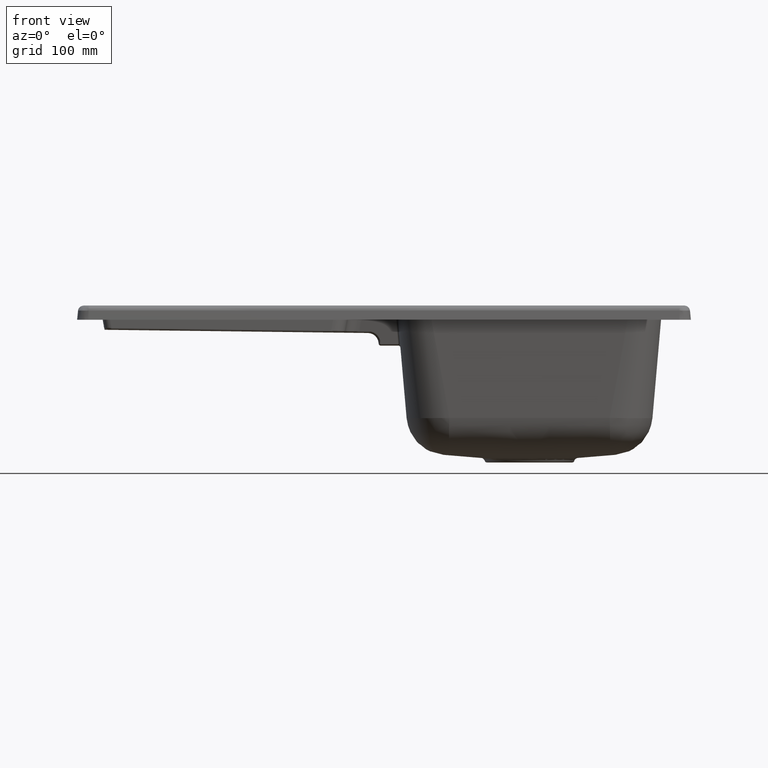
[diagram: clean part render]
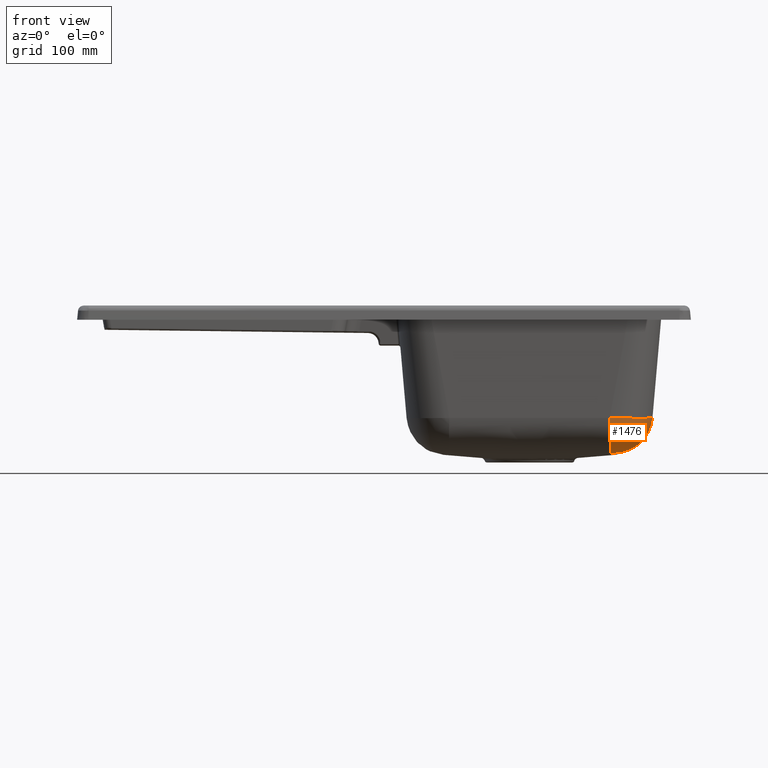
[diagram: same view with one face highlighted and labeled with its STEP entity id]
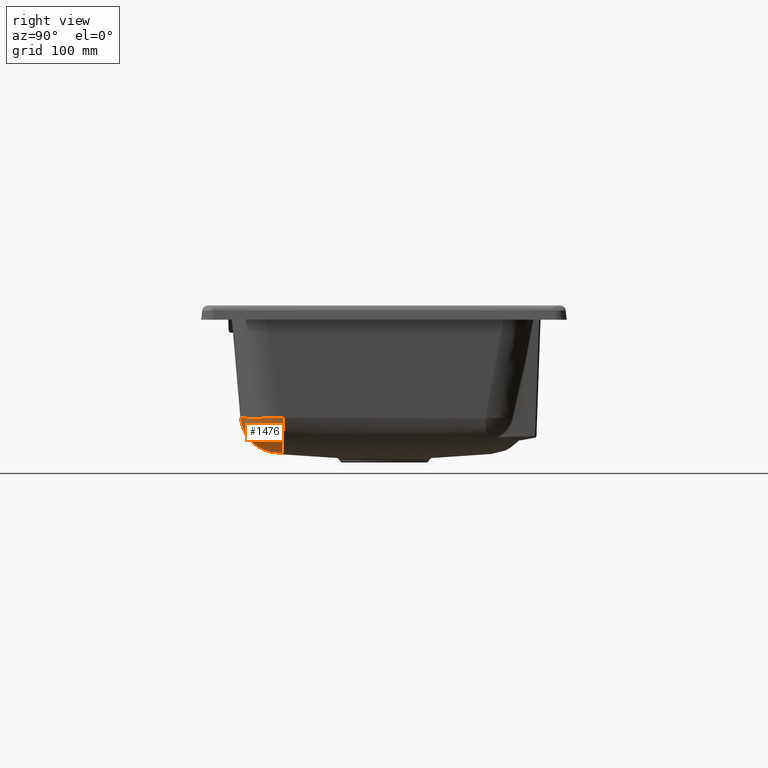
[diagram: same view with one face highlighted and labeled with its STEP entity id]
A machine part, front view. The second image highlights one B-rep face of the part: STEP entity #1476.
A second angle (right view) of the same face is appended — the face is thin or edge-on in the first view.
In plain terms, the highlighted face is a freeform B-spline surface patch.
Its self-contained STEP definition (entity closure, byte-faithful):
#442=B_SPLINE_SURFACE_WITH_KNOTS('',3,5,((#22221,#22222,#22223,#22224,#22225,
#22226,#22227,#22228,#22229,#22230),(#22231,#22232,#22233,#22234,#22235,
#22236,#22237,#22238,#22239,#22240),(#22241,#22242,#22243,#22244,#22245,
#22246,#22247,#22248,#22249,#22250),(#22251,#22252,#22253,#22254,#22255,
#22256,#22257,#22258,#22259,#22260),(#22261,#22262,#22263,#22264,#22265,
#22266,#22267,#22268,#22269,#22270),(#22271,#22272,#22273,#22274,#22275,
#22276,#22277,#22278,#22279,#22280),(#22281,#22282,#22283,#22284,#22285,
#22286,#22287,#22288,#22289,#22290),(#22291,#22292,#22293,#22294,#22295,
#22296,#22297,#22298,#22299,#22300),(#22301,#22302,#22303,#22304,#22305,
#22306,#22307,#22308,#22309,#22310),(#22311,#22312,#22313,#22314,#22315,
#22316,#22317,#22318,#22319,#22320),(#22321,#22322,#22323,#22324,#22325,
#22326,#22327,#22328,#22329,#22330)),.UNSPECIFIED.,.F.,.F.,.F.,(4,1,1,1,
1,1,1,1,4),(6,4,6),(0.,0.125,0.25,0.375,0.5,0.625,0.75,0.875,1.),(0.,0.5,
1.),.UNSPECIFIED.);
#671=FACE_OUTER_BOUND('',#1962,.T.);
#1178=B_SPLINE_CURVE_WITH_KNOTS('',3,(#21959,#21960,#21961,#21962,#21963,
#21964,#21965,#21966,#21967,#21968,#21969),.UNSPECIFIED.,.F.,.F.,(4,1,1,
1,1,1,1,1,4),(0.,0.125,0.25,0.375,0.5,0.625,0.75,0.875,1.),
 .UNSPECIFIED.);
#1180=B_SPLINE_CURVE_WITH_KNOTS('',3,(#22192,#22193,#22194,#22195,#22196,
#22197,#22198,#22199,#22200,#22201),.UNSPECIFIED.,.F.,.F.,(4,2,2,2,4),(0.,
0.25,0.5,0.75,1.),.UNSPECIFIED.);
#1181=B_SPLINE_CURVE_WITH_KNOTS('',3,(#22203,#22204,#22205,#22206,#22207,
#22208,#22209,#22210,#22211,#22212,#22213),.UNSPECIFIED.,.F.,.F.,(4,1,1,
1,1,1,1,1,4),(0.,0.125,0.25,0.375,0.5,0.625,0.75,0.875,1.),
 .UNSPECIFIED.);
#1182=B_SPLINE_CURVE_WITH_KNOTS('',3,(#22215,#22216,#22217,#22218,#22219,
#22220),.UNSPECIFIED.,.F.,.F.,(4,2,4),(0.,0.5,1.),.UNSPECIFIED.);
#1476=ADVANCED_FACE('',(#671),#442,.T.);
#1962=EDGE_LOOP('',(#3114,#3115,#3116,#3117));
#3114=ORIENTED_EDGE('',*,*,#4453,.T.);
#3115=ORIENTED_EDGE('',*,*,#4455,.F.);
#3116=ORIENTED_EDGE('',*,*,#4456,.F.);
#3117=ORIENTED_EDGE('',*,*,#4457,.F.);
#3772=VERTEX_POINT('',#21154);
#3809=VERTEX_POINT('',#21970);
#3810=VERTEX_POINT('',#22202);
#3811=VERTEX_POINT('',#22214);
#4453=EDGE_CURVE('',#3809,#3772,#1178,.T.);
#4455=EDGE_CURVE('',#3810,#3772,#1180,.T.);
#4456=EDGE_CURVE('',#3811,#3810,#1181,.T.);
#4457=EDGE_CURVE('',#3809,#3811,#1182,.T.);
#21154=CARTESIAN_POINT('',(172.630142513004,-141.963709462282,53.3849828229063));
#21959=CARTESIAN_POINT('',(120.326248077913,-143.33888136601,4.17218870263831));
#21960=CARTESIAN_POINT('',(123.599980791565,-143.329325562745,4.25954210211326));
#21961=CARTESIAN_POINT('',(130.131394748293,-143.294971237181,5.03186046092512));
#21962=CARTESIAN_POINT('',(139.556588665748,-143.199415633354,7.94484683321991));
#21963=CARTESIAN_POINT('',(148.298131615595,-143.062995482592,12.516030256442));
#21964=CARTESIAN_POINT('',(156.066954122837,-142.890222603578,18.5942247129857));
#21965=CARTESIAN_POINT('',(162.606131265503,-142.686810127202,25.9784434977313));
#21966=CARTESIAN_POINT('',(167.699431018375,-142.459485146248,34.4244793983414));
#21967=CARTESIAN_POINT('',(171.178401806658,-142.215764966775,43.6530363699214));
#21968=CARTESIAN_POINT('',(172.344809085029,-142.047728483881,50.1236068174302));
#21969=CARTESIAN_POINT('',(172.630142513004,-141.963709462282,53.3849828229062));
#21970=CARTESIAN_POINT('',(120.326248077913,-143.33888136601,4.17218870263831));
#22192=CARTESIAN_POINT('',(112.493387922807,-202.105440782155,53.4034111436312));
#22193=CARTESIAN_POINT('',(119.23352652952,-202.105492361053,53.4040006931319));
#22194=CARTESIAN_POINT('',(126.648188836215,-200.9698868612,53.2966964661192));
#22195=CARTESIAN_POINT('',(141.477726339814,-195.305010598866,53.0825011858364));
#22196=CARTESIAN_POINT('',(148.875465482663,-190.711232587553,52.9827455766643));
#22197=CARTESIAN_POINT('',(161.238152461842,-178.34693582354,52.9775590585692));
#22198=CARTESIAN_POINT('',(165.813955284222,-170.980396419305,53.0719108851719));
#22199=CARTESIAN_POINT('',(171.486986791304,-156.151660133644,53.27903466712));
#22200=CARTESIAN_POINT('',(172.630120433681,-148.724439257771,53.3847304550878));
#22201=CARTESIAN_POINT('',(172.630142513004,-141.963709462282,53.3849828229063));
#22202=CARTESIAN_POINT('',(112.493387922807,-202.105440782155,53.4034111436312));
#22203=CARTESIAN_POINT('',(113.699689998693,-149.933340030027,4.19026180571872));
#22204=CARTESIAN_POINT('',(113.691140220304,-153.201344900022,4.28550229765437));
#22205=CARTESIAN_POINT('',(113.66071480429,-159.719901645647,5.07158442867687));
#22206=CARTESIAN_POINT('',(113.576603192258,-169.123325059333,7.99863387435791));
#22207=CARTESIAN_POINT('',(113.456789946429,-177.842375309044,12.5771568822894));
#22208=CARTESIAN_POINT('',(113.305224360437,-185.589693151743,18.6562324243395));
#22209=CARTESIAN_POINT('',(113.126901500898,-192.109923678824,26.0355183154723));
#22210=CARTESIAN_POINT('',(112.927698948246,-197.188183997126,34.4717885717));
#22211=CARTESIAN_POINT('',(112.714181962272,-200.657082960898,43.6870050919014));
#22212=CARTESIAN_POINT('',(112.566986388522,-201.820565694764,50.1472739949941));
#22213=CARTESIAN_POINT('',(112.493387922807,-202.105440782155,53.4034111436312));
#22214=CARTESIAN_POINT('',(113.699687988177,-149.934108420737,4.19028421015552));
#22215=CARTESIAN_POINT('',(120.326248077913,-143.33888136601,4.17218870263831));
#22216=CARTESIAN_POINT('',(120.276117879567,-145.021048293914,4.21375318165577));
#22217=CARTESIAN_POINT('',(119.509938280687,-146.697769583802,4.23675045300476));
#22218=CARTESIAN_POINT('',(117.059489047882,-149.132828038044,4.24311996093288));
#22219=CARTESIAN_POINT('',(115.385807367809,-149.886342538994,4.22661457526766));
#22220=CARTESIAN_POINT('',(113.699689998693,-149.933340030027,4.19026180571868));
#22221=CARTESIAN_POINT('',(120.326248077913,-143.33888136601,4.17218870263831));
#22222=CARTESIAN_POINT('',(120.295422134733,-144.373275480746,4.19774743391792));
#22223=CARTESIAN_POINT('',(120.045593262535,-145.385875262571,4.2171295461165));
#22224=CARTESIAN_POINT('',(119.607023920565,-146.338919731519,4.23050694310833));
#22225=CARTESIAN_POINT('',(119.009976568067,-147.194647907625,4.23805152876769));
#22226=CARTESIAN_POINT('',(117.559450760502,-148.635949714221,4.24181888516998));
#22227=CARTESIAN_POINT('',(116.701320388401,-149.226941133605,4.23807153130397));
#22228=CARTESIAN_POINT('',(115.747319101631,-149.65941122325,4.22841499821239));
#22229=CARTESIAN_POINT('',(114.734443453845,-149.904498137332,4.21257113873678));
#22230=CARTESIAN_POINT('',(113.699689998693,-149.933340030027,4.19026180571872));
#22231=CARTESIAN_POINT('',(123.599980791565,-143.329325562745,4.25954210211326));
#22232=CARTESIAN_POINT('',(123.464978988172,-144.81893939517,4.29190514288436));
#22233=CARTESIAN_POINT('',(123.044029418444,-146.287630112094,4.31650628092207));
#22234=CARTESIAN_POINT('',(122.364148149697,-147.679139918147,4.33351638231948));
#22235=CARTESIAN_POINT('',(121.463019024345,-148.937200782226,4.34330897186429));
#22236=CARTESIAN_POINT('',(119.305403749245,-151.084802364834,4.34870549215347));
#22237=CARTESIAN_POINT('',(118.044434211344,-151.979560438927,4.34433830208394));
#22238=CARTESIAN_POINT('',(116.651370127919,-152.65303565249,4.33263466891415));
#22239=CARTESIAN_POINT('',(115.181749020108,-153.068861573509,4.31310700989085));
#22240=CARTESIAN_POINT('',(113.691140220304,-153.201344900022,4.28550229765437));
#22241=CARTESIAN_POINT('',(130.131394748293,-143.294971237181,5.03186046092512));
#22242=CARTESIAN_POINT('',(129.787031138389,-145.695502477851,5.0379236885967));
#22243=CARTESIAN_POINT('',(128.975438082749,-148.073955385418,5.04256461875146));
#22244=CARTESIAN_POINT('',(127.863244286773,-150.341088723408,5.03630039999422));
#22245=CARTESIAN_POINT('',(126.339506635596,-152.404607030894,5.03865584788301));
#22246=CARTESIAN_POINT('',(122.781224223505,-155.951428100908,5.04683859401066));
#22247=CARTESIAN_POINT('',(120.713842972561,-157.468262234141,5.05268935514708));
#22248=CARTESIAN_POINT('',(118.443986423187,-158.5734653193,5.06702298961972));
#22249=CARTESIAN_POINT('',(116.063336663222,-159.379220508489,5.07019722159923));
#22250=CARTESIAN_POINT('',(113.66071480429,-159.719901645647,5.07158442867687));
#22251=CARTESIAN_POINT('',(139.556588665748,-143.199415633354,7.9448468332199));
#22252=CARTESIAN_POINT('',(138.985922850772,-146.93899451494,7.81616857994532));
#22253=CARTESIAN_POINT('',(137.559991034914,-150.661406341488,7.71657384769505));
#22254=CARTESIAN_POINT('',(135.935251531015,-154.228828910161,7.60591611196466));
#22255=CARTESIAN_POINT('',(133.477913742663,-157.490188198604,7.56850011857158));
#22256=CARTESIAN_POINT('',(127.883440191331,-163.071751282141,7.57945211849341));
#22257=CARTESIAN_POINT('',(124.617151352079,-165.521790756198,7.62782896058106));
#22258=CARTESIAN_POINT('',(121.045558711462,-167.138906836433,7.74939887968692));
#22259=CARTESIAN_POINT('',(117.319374932127,-168.558169218795,7.85973686890387));
#22260=CARTESIAN_POINT('',(113.576603192258,-169.123325059333,7.99863387435791));
#22261=CARTESIAN_POINT('',(148.298131615595,-143.062995482592,12.516030256442));
#22262=CARTESIAN_POINT('',(147.647780036088,-148.084402721543,12.2243023932704));
#22263=CARTESIAN_POINT('',(145.678953415094,-153.108900551775,11.9949955538414));
#22264=CARTESIAN_POINT('',(143.656857013765,-157.94343502402,11.7538899507748));
#22265=CARTESIAN_POINT('',(140.311860139842,-162.369310102129,11.6659337797344));
#22266=CARTESIAN_POINT('',(132.782473784917,-169.885342511321,11.6783265451018));
#22267=CARTESIAN_POINT('',(128.351111253479,-173.223161755298,11.7786670084094));
#22268=CARTESIAN_POINT('',(123.511430940811,-175.23743130445,12.0322277710603));
#22269=CARTESIAN_POINT('',(118.482027944784,-177.199146862838,12.2739088560116));
#22270=CARTESIAN_POINT('',(113.456789946429,-177.842375309044,12.5771568822894));
#22271=CARTESIAN_POINT('',(156.066954122837,-142.890222603578,18.5942247129857));
#22272=CARTESIAN_POINT('',(155.489165268075,-149.101477999978,18.1925455308132));
#22273=CARTESIAN_POINT('',(153.119259927999,-155.350836133519,17.8676852367061));
#22274=CARTESIAN_POINT('',(150.783102100614,-161.381337006919,17.5207202209961));
#22275=CARTESIAN_POINT('',(146.643630571965,-166.899234536071,17.3929216975084));
#22276=CARTESIAN_POINT('',(137.334832082906,-176.195442290532,17.4055674222535));
#22277=CARTESIAN_POINT('',(131.811492255476,-180.328451228471,17.5459869497088));
#22278=CARTESIAN_POINT('',(125.775456646807,-182.657178007444,17.9057223040363));
#22279=CARTESIAN_POINT('',(119.520580543173,-185.020082554345,18.2432702746484));
#22280=CARTESIAN_POINT('',(113.305224360437,-185.589693151743,18.6562324243395));
#22281=CARTESIAN_POINT('',(162.606131265503,-142.686810127203,25.9784434977312));
#22282=CARTESIAN_POINT('',(162.204437776258,-149.960096144769,25.5793879959577));
#22283=CARTESIAN_POINT('',(159.615846546358,-157.309920164469,25.2363131006013));
#22284=CARTESIAN_POINT('',(157.005915044547,-164.410607664038,24.8477484012006));
#22285=CARTESIAN_POINT('',(152.214091795438,-170.893239241572,24.7067922973359));
#22286=CARTESIAN_POINT('',(141.352870428836,-181.743910288344,24.7186855615869));
#22287=CARTESIAN_POINT('',(134.865483330819,-186.530584475886,24.8714988173873));
#22288=CARTESIAN_POINT('',(127.759546388335,-189.134183542104,25.272052036557));
#22289=CARTESIAN_POINT('',(120.404207219683,-191.716557948033,25.6268830377575));
#22290=CARTESIAN_POINT('',(113.126901500898,-192.109923678824,26.0355183154723));
#22291=CARTESIAN_POINT('',(167.699431018375,-142.459485146249,34.4244793983414));
#22292=CARTESIAN_POINT('',(167.495785332739,-150.637441410685,34.1463832193525));
#22293=CARTESIAN_POINT('',(164.893600620252,-158.914065612992,33.8653115329786));
#22294=CARTESIAN_POINT('',(162.000402319635,-166.897931000931,33.5122030367132));
#22295=CARTESIAN_POINT('',(156.747736460458,-174.156031296649,33.3873233891121));
#22296=CARTESIAN_POINT('',(144.640140703404,-186.256307331446,33.3976632754589));
#22297=CARTESIAN_POINT('',(137.378592960085,-191.50564164057,33.5328439436372));
#22298=CARTESIAN_POINT('',(129.390507671768,-194.394315754202,33.8962376711949));
#22299=CARTESIAN_POINT('',(121.109128142847,-196.991790022772,34.1870514013844));
#22300=CARTESIAN_POINT('',(112.927698948246,-197.188183997126,34.4717885717));
#22301=CARTESIAN_POINT('',(171.178401806658,-142.215764966775,43.6530363699213));
#22302=CARTESIAN_POINT('',(171.11953745175,-151.126423060798,43.5543197978418));
#22303=CARTESIAN_POINT('',(168.734908282877,-160.119483479168,43.3690718024577));
#22304=CARTESIAN_POINT('',(165.499640277591,-168.748398112268,43.1084080862079));
#22305=CARTESIAN_POINT('',(160.024730547192,-176.538267765444,43.0149506464589));
#22306=CARTESIAN_POINT('',(147.045976346042,-189.513893317062,43.0231436790815));
#22307=CARTESIAN_POINT('',(139.254515959017,-194.98760812349,43.1247649522565));
#22308=CARTESIAN_POINT('',(130.623208081387,-198.220783385659,43.393293811054));
#22309=CARTESIAN_POINT('',(121.627084572421,-200.602899548203,43.5854313521968));
#22310=CARTESIAN_POINT('',(112.714181962272,-200.657082960898,43.6870050919014));
#22311=CARTESIAN_POINT('',(172.344809085029,-142.047728483881,50.1236068174302));
#22312=CARTESIAN_POINT('',(172.328877581436,-151.33578764328,50.1097716966736));
#22313=CARTESIAN_POINT('',(170.277474167362,-160.659077200523,49.954726960742));
#22314=CARTESIAN_POINT('',(166.746677724356,-169.543276376867,49.76343467676));
#22315=CARTESIAN_POINT('',(161.309757795449,-177.504533619759,49.6834548968359));
#22316=CARTESIAN_POINT('',(148.026525376115,-190.787860586435,49.6899529189505));
#22317=CARTESIAN_POINT('',(140.065207815252,-196.225066194386,49.7764187674887));
#22318=CARTESIAN_POINT('',(131.180380116915,-199.755711805363,49.9736318381792));
#22319=CARTESIAN_POINT('',(121.855880218418,-201.806467232054,50.1333124095703));
#22320=CARTESIAN_POINT('',(112.566986388522,-201.820565694764,50.1472739949941));
#22321=CARTESIAN_POINT('',(172.630142513004,-141.963709462282,53.3849828229063));
#22322=CARTESIAN_POINT('',(172.630111642541,-151.416302693019,53.3846299718969));
#22323=CARTESIAN_POINT('',(170.807037841407,-160.871219895705,53.2208044565526));
#22324=CARTESIAN_POINT('',(167.10591983037,-169.841526970361,53.0576300313674));
#22325=CARTESIAN_POINT('',(161.739362837122,-177.843242693138,52.9776234841122));
#22326=CARTESIAN_POINT('',(148.371847675806,-191.21251836715,52.9832358114663));
#22327=CARTESIAN_POINT('',(140.370889507738,-196.580078318385,53.0688546860757));
#22328=CARTESIAN_POINT('',(131.400969147061,-200.282073849957,53.2369311046196));
#22329=CARTESIAN_POINT('',(121.945958155683,-202.105513117931,53.4042379453317));
#22330=CARTESIAN_POINT('',(112.493387922807,-202.105440782155,53.4034111436312));